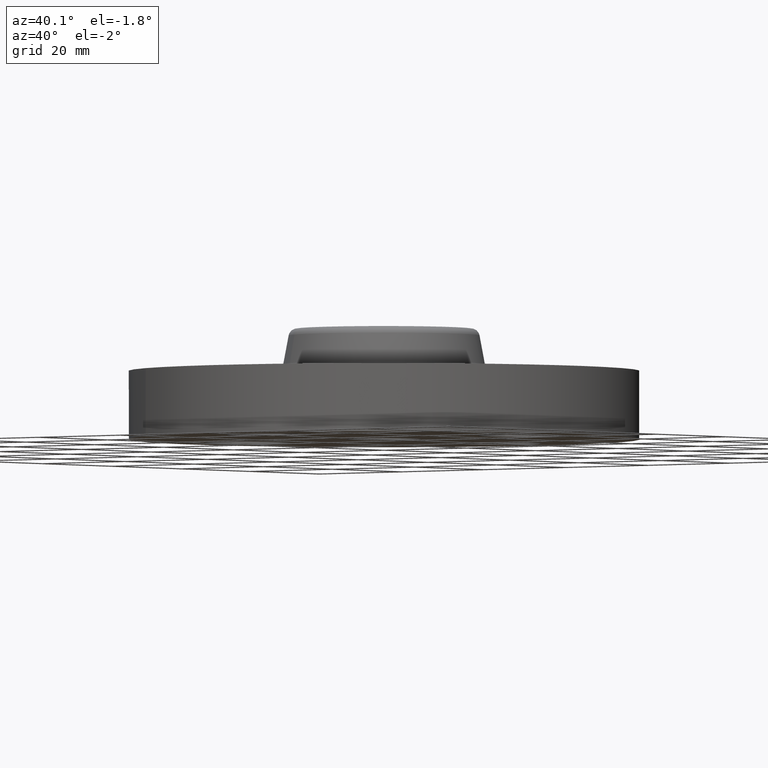
[diagram: clean part render]
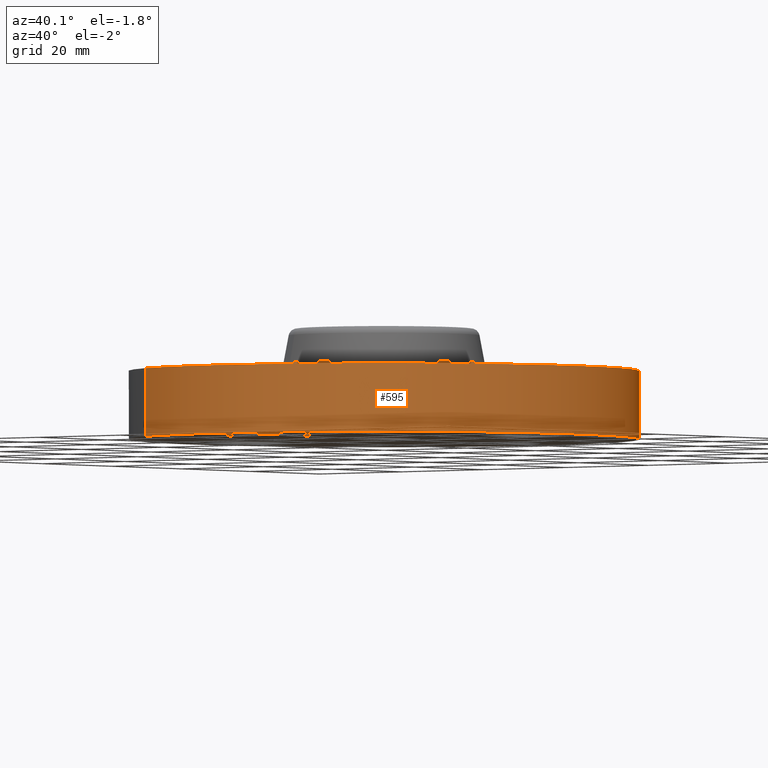
[diagram: same view with one face highlighted and labeled with its STEP entity id]
A machine part, auxiliary view. The second image highlights one B-rep face of the part: STEP entity #595.
In plain terms, the highlighted cylindrical surface (partial cylindrical patch) has radius 47.625 mm, axis along (0, 0, -1).
Its self-contained STEP definition (entity closure, byte-faithful):
#376=AXIS2_PLACEMENT_3D('Circle Axis2P3D',#374,#375,$) ;
#582=AXIS2_PLACEMENT_3D('Cylinder Axis2P3D',#579,#580,#581) ;
#586=AXIS2_PLACEMENT_3D('Circle Axis2P3D',#584,#585,$) ;
#369=CARTESIAN_POINT('Vertex',(-0.898922884866,-1.64546730356,0.)) ;
#371=CARTESIAN_POINT('Vertex',(0.898922884866,1.64546730356,0.)) ;
#374=CARTESIAN_POINT('Axis2P3D Location',(8.39223703654E-016,2.9624596739E-013,0.)) ;
#534=CARTESIAN_POINT('Line Origine',(-0.898922884888,-1.64546730355,0.250000000005)) ;
#538=CARTESIAN_POINT('Vertex',(-0.898922884888,-1.64546730355,0.500000000027)) ;
#557=CARTESIAN_POINT('Vertex',(0.898922884866,1.64546730357,0.500000000002)) ;
#560=CARTESIAN_POINT('Line Origine',(0.898922884888,1.64546730355,0.250000000005)) ;
#579=CARTESIAN_POINT('Axis2P3D Location',(0.,0.,0.405000000002)) ;
#584=CARTESIAN_POINT('Axis2P3D Location',(0.,0.,0.500000000027)) ;
#375=DIRECTION('Axis2P3D Direction',(0.,0.,-0.0393700787402)) ;
#535=DIRECTION('Vector Direction',(0.,0.,-0.0393700787402)) ;
#561=DIRECTION('Vector Direction',(0.,0.,-0.0393700787402)) ;
#580=DIRECTION('Axis2P3D Direction',(0.,0.,-0.0393700787402)) ;
#581=DIRECTION('Axis2P3D XDirection',(0.0188750212049,0.0345504945626,0.)) ;
#585=DIRECTION('Axis2P3D Direction',(0.,0.,-0.0393700787402)) ;
#536=VECTOR('Line Direction',#535,0.0393700787402) ;
#562=VECTOR('Line Direction',#561,0.0393700787402) ;
#590=ORIENTED_EDGE('',*,*,#378,.F.) ;
#591=ORIENTED_EDGE('',*,*,#564,.T.) ;
#592=ORIENTED_EDGE('',*,*,#588,.T.) ;
#593=ORIENTED_EDGE('',*,*,#540,.F.) ;
#595=ADVANCED_FACE('PartBody',(#594),#583,.T.) ;
#377=CIRCLE('generated circle',#376,1.87500000001) ;
#587=CIRCLE('generated circle',#586,1.87500000001) ;
#583=CYLINDRICAL_SURFACE('generated cylinder',#582,1.87500000001) ;
#378=EDGE_CURVE('',#372,#370,#377,.T.) ;
#540=EDGE_CURVE('',#370,#539,#537,.F.) ;
#564=EDGE_CURVE('',#372,#558,#563,.F.) ;
#588=EDGE_CURVE('',#558,#539,#587,.T.) ;
#589=EDGE_LOOP('',(#590,#591,#592,#593)) ;
#594=FACE_OUTER_BOUND('',#589,.T.) ;
#537=LINE('Line',#534,#536) ;
#563=LINE('Line',#560,#562) ;
#370=VERTEX_POINT('',#369) ;
#372=VERTEX_POINT('',#371) ;
#539=VERTEX_POINT('',#538) ;
#558=VERTEX_POINT('',#557) ;